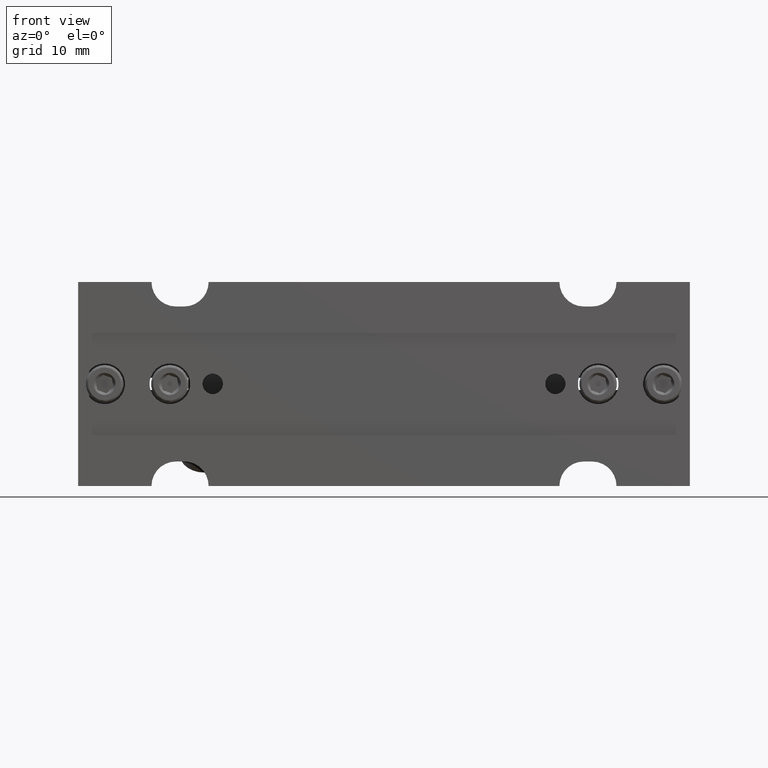
[diagram: clean part render]
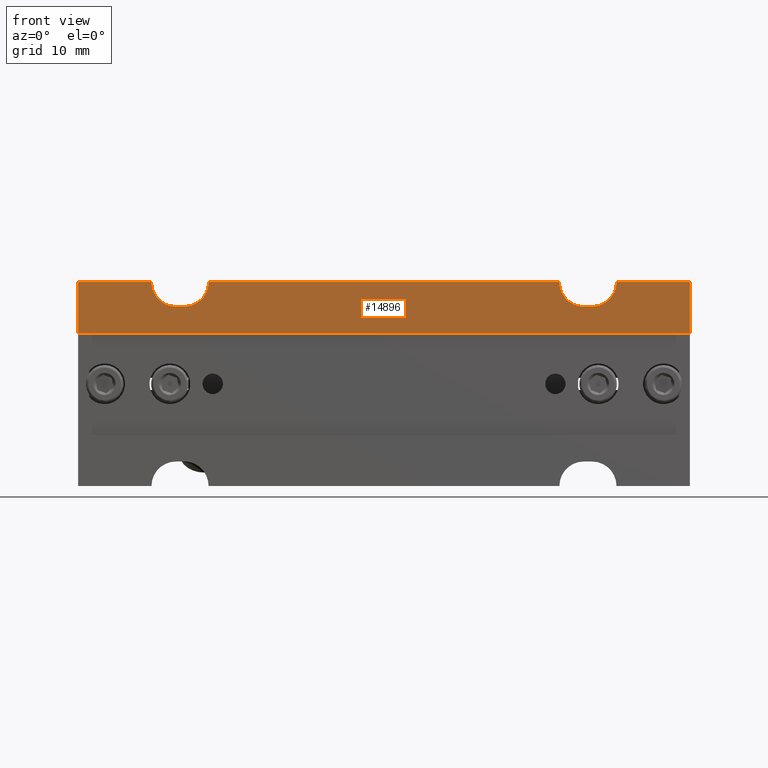
[diagram: same view with one face highlighted and labeled with its STEP entity id]
A machine part, front view. The second image highlights one B-rep face of the part: STEP entity #14896.
In plain terms, the highlighted planar face has unit normal (0, 1, 0).
Its self-contained STEP definition (entity closure, byte-faithful):
#448 = VECTOR ( 'NONE', #17083, 1000.000000000000000 ) ;
#546 = VERTEX_POINT ( 'NONE', #3862 ) ;
#966 = CARTESIAN_POINT ( 'NONE',  ( -8.673654033717513201, 28.17343476192750629, 78.43264947075056170 ) ) ;
#1631 = DIRECTION ( 'NONE',  ( -0.000000000000000000, -1.000000000000000000, -0.000000000000000000 ) ) ;
#1934 = ORIENTED_EDGE ( 'NONE', *, *, #11852, .T. ) ;
#2108 = ORIENTED_EDGE ( 'NONE', *, *, #17259, .T. ) ;
#2662 = CARTESIAN_POINT ( 'NONE',  ( 45.32634596628248858, 28.17343476192750629, 75.43264947075054749 ) ) ;
#2669 = LINE ( 'NONE', #16580, #11147 ) ;
#2742 = EDGE_CURVE ( 'NONE', #14453, #14023, #2669, .T. ) ;
#2766 = AXIS2_PLACEMENT_3D ( 'NONE', #17622, #13119, #6598 ) ;
#3073 = VECTOR ( 'NONE', #3362, 1000.000000000000000 ) ;
#3146 = LINE ( 'NONE', #7855, #8940 ) ;
#3288 = DIRECTION ( 'NONE',  ( 0.000000000000000000, 0.000000000000000000, 1.000000000000000000 ) ) ;
#3362 = DIRECTION ( 'NONE',  ( -1.000000000000000000, 0.000000000000000000, 1.734723475976817547E-15 ) ) ;
#3589 = CARTESIAN_POINT ( 'NONE',  ( -4.673654033717514089, 28.17343476192750629, 75.43264947075054749 ) ) ;
#3862 = CARTESIAN_POINT ( 'NONE',  ( 57.32634596628248858, 28.17343476192750629, 72.18264947075056170 ) ) ;
#3950 = DIRECTION ( 'NONE',  ( 1.000000000000000000, 0.000000000000000000, -0.000000000000000000 ) ) ;
#4054 = VERTEX_POINT ( 'NONE', #5646 ) ;
#4096 = CARTESIAN_POINT ( 'NONE',  ( 57.32634596628248858, 28.17343476192750629, 78.43264947075056170 ) ) ;
#4311 = ORIENTED_EDGE ( 'NONE', *, *, #16951, .F. ) ;
#4457 = VERTEX_POINT ( 'NONE', #6208 ) ;
#4827 = DIRECTION ( 'NONE',  ( -0.000000000000000000, -1.000000000000000000, -0.000000000000000000 ) ) ;
#4867 = EDGE_CURVE ( 'NONE', #4457, #8575, #13503, .T. ) ;
#4902 = ORIENTED_EDGE ( 'NONE', *, *, #10974, .F. ) ;
#5095 = DIRECTION ( 'NONE',  ( -2.775557561562891351E-16, 0.000000000000000000, 1.000000000000000000 ) ) ;
#5646 = CARTESIAN_POINT ( 'NONE',  ( 44.32634596628248858, 28.17343476192750629, 75.43264947075054749 ) ) ;
#6020 = ORIENTED_EDGE ( 'NONE', *, *, #14266, .T. ) ;
#6057 = DIRECTION ( 'NONE',  ( 0.000000000000000000, -0.000000000000000000, 1.000000000000000000 ) ) ;
#6155 = CARTESIAN_POINT ( 'NONE',  ( 19.82634596628248858, 28.17343476192750629, 78.43264947075056170 ) ) ;
#6208 = CARTESIAN_POINT ( 'NONE',  ( 48.32634596628248858, 28.17343476192750629, 78.43264947075056170 ) ) ;
#6292 = EDGE_CURVE ( 'NONE', #546, #8575, #17648, .T. ) ;
#6598 = DIRECTION ( 'NONE',  ( 0.000000000000000000, 0.000000000000000000, 1.000000000000000000 ) ) ;
#6783 = AXIS2_PLACEMENT_3D ( 'NONE', #15665, #14222, #6057 ) ;
#7279 = DIRECTION ( 'NONE',  ( 1.000000000000000000, 0.000000000000000000, -0.000000000000000000 ) ) ;
#7320 = VERTEX_POINT ( 'NONE', #8285 ) ;
#7855 = CARTESIAN_POINT ( 'NONE',  ( 45.32634596628248858, 28.17343476192750629, 75.43264947075054749 ) ) ;
#7999 = CARTESIAN_POINT ( 'NONE',  ( 44.32634596628248858, 28.17343476192750629, 78.43264947075056170 ) ) ;
#8000 = PLANE ( 'NONE',  #6783 ) ;
#8025 = CARTESIAN_POINT ( 'NONE',  ( -1.673654033717508094, 28.17343476192750629, 78.43264947075056170 ) ) ;
#8027 = VERTEX_POINT ( 'NONE', #966 ) ;
#8285 = CARTESIAN_POINT ( 'NONE',  ( -5.673654033717513201, 28.17343476192750629, 75.43264947075054749 ) ) ;
#8416 = VECTOR ( 'NONE', #19209, 1000.000000000000000 ) ;
#8575 = VERTEX_POINT ( 'NONE', #4096 ) ;
#8940 = VECTOR ( 'NONE', #18893, 1000.000000000000000 ) ;
#8979 = CIRCLE ( 'NONE', #2766, 3.000000000000002665 ) ;
#9076 = DIRECTION ( 'NONE',  ( -0.000000000000000000, -1.000000000000000000, -0.000000000000000000 ) ) ;
#9189 = CARTESIAN_POINT ( 'NONE',  ( 45.32634596628248858, 28.17343476192750629, 78.43264947075056170 ) ) ;
#9319 = FACE_OUTER_BOUND ( 'NONE', #13008, .T. ) ;
#9799 = DIRECTION ( 'NONE',  ( 0.000000000000000000, 0.000000000000000000, 1.000000000000000000 ) ) ;
#9871 = LINE ( 'NONE', #13328, #12957 ) ;
#9923 = AXIS2_PLACEMENT_3D ( 'NONE', #7999, #4827, #3288 ) ;
#10475 = VERTEX_POINT ( 'NONE', #13812 ) ;
#10577 = LINE ( 'NONE', #17955, #17772 ) ;
#10974 = EDGE_CURVE ( 'NONE', #8027, #7320, #16100, .T. ) ;
#11147 = VECTOR ( 'NONE', #7279, 1000.000000000000000 ) ;
#11379 = VERTEX_POINT ( 'NONE', #3589 ) ;
#11481 = ORIENTED_EDGE ( 'NONE', *, *, #6292, .T. ) ;
#11609 = ORIENTED_EDGE ( 'NONE', *, *, #15140, .F. ) ;
#11852 = EDGE_CURVE ( 'NONE', #15916, #4054, #3146, .T. ) ;
#12183 = AXIS2_PLACEMENT_3D ( 'NONE', #14910, #9076, #16544 ) ;
#12957 = VECTOR ( 'NONE', #16109, 1000.000000000000000 ) ;
#13008 = EDGE_LOOP ( 'NONE', ( #6020, #11481, #14556, #11609, #1934, #4311, #13199, #18320, #2108, #4902, #16189, #16659 ) ) ;
#13119 = DIRECTION ( 'NONE',  ( -0.000000000000000000, -1.000000000000000000, -0.000000000000000000 ) ) ;
#13199 = ORIENTED_EDGE ( 'NONE', *, *, #2742, .F. ) ;
#13328 = CARTESIAN_POINT ( 'NONE',  ( -21.44216856881706335, 28.17343476192750629, 72.18264947075056170 ) ) ;
#13503 = LINE ( 'NONE', #6155, #448 ) ;
#13812 = CARTESIAN_POINT ( 'NONE',  ( -17.67365403371751498, 28.17343476192750629, 78.43264947075056170 ) ) ;
#14023 = VERTEX_POINT ( 'NONE', #16640 ) ;
#14167 = CIRCLE ( 'NONE', #9923, 3.000000000000002665 ) ;
#14222 = DIRECTION ( 'NONE',  ( 0.000000000000000000, 1.000000000000000000, 0.000000000000000000 ) ) ;
#14266 = EDGE_CURVE ( 'NONE', #14357, #546, #9871, .T. ) ;
#14357 = VERTEX_POINT ( 'NONE', #16914 ) ;
#14453 = VERTEX_POINT ( 'NONE', #8025 ) ;
#14504 = CARTESIAN_POINT ( 'NONE',  ( -17.67365403371751498, 28.17343476192750629, 53.43264947075055460 ) ) ;
#14556 = ORIENTED_EDGE ( 'NONE', *, *, #4867, .F. ) ;
#14896 = ADVANCED_FACE ( 'NONE', ( #9319 ), #8000, .F. ) ;
#14910 = CARTESIAN_POINT ( 'NONE',  ( -5.673654033717511425, 28.17343476192750629, 78.43264947075056170 ) ) ;
#15140 = EDGE_CURVE ( 'NONE', #15916, #4457, #17536, .T. ) ;
#15200 = EDGE_CURVE ( 'NONE', #10475, #14357, #17468, .T. ) ;
#15427 = CARTESIAN_POINT ( 'NONE',  ( -5.673654033717507872, 28.17343476192750629, 75.43264947075054749 ) ) ;
#15665 = CARTESIAN_POINT ( 'NONE',  ( 19.82634596628248858, 28.17343476192750629, 65.93264947075056170 ) ) ;
#15907 = AXIS2_PLACEMENT_3D ( 'NONE', #9189, #1631, #9799 ) ;
#15916 = VERTEX_POINT ( 'NONE', #2662 ) ;
#16016 = VECTOR ( 'NONE', #5095, 1000.000000000000000 ) ;
#16100 = CIRCLE ( 'NONE', #12183, 3.000000000000002665 ) ;
#16109 = DIRECTION ( 'NONE',  ( 1.000000000000000000, 0.000000000000000000, -0.000000000000000000 ) ) ;
#16189 = ORIENTED_EDGE ( 'NONE', *, *, #18393, .F. ) ;
#16544 = DIRECTION ( 'NONE',  ( 0.000000000000000000, 0.000000000000000000, 1.000000000000000000 ) ) ;
#16580 = CARTESIAN_POINT ( 'NONE',  ( 19.82634596628248858, 28.17343476192750629, 78.43264947075056170 ) ) ;
#16640 = CARTESIAN_POINT ( 'NONE',  ( 41.32634596628248858, 28.17343476192750629, 78.43264947075056170 ) ) ;
#16659 = ORIENTED_EDGE ( 'NONE', *, *, #15200, .T. ) ;
#16914 = CARTESIAN_POINT ( 'NONE',  ( -17.67365403371751498, 28.17343476192750629, 72.18264947075056170 ) ) ;
#16951 = EDGE_CURVE ( 'NONE', #14023, #4054, #14167, .T. ) ;
#17083 = DIRECTION ( 'NONE',  ( 1.000000000000000000, 0.000000000000000000, -0.000000000000000000 ) ) ;
#17259 = EDGE_CURVE ( 'NONE', #11379, #7320, #18599, .T. ) ;
#17468 = LINE ( 'NONE', #14504, #8416 ) ;
#17536 = CIRCLE ( 'NONE', #15907, 3.000000000000002665 ) ;
#17622 = CARTESIAN_POINT ( 'NONE',  ( -4.673654033717510536, 28.17343476192750629, 78.43264947075056170 ) ) ;
#17648 = LINE ( 'NONE', #18895, #16016 ) ;
#17772 = VECTOR ( 'NONE', #3950, 1000.000000000000000 ) ;
#17955 = CARTESIAN_POINT ( 'NONE',  ( 19.82634596628248858, 28.17343476192750629, 78.43264947075056170 ) ) ;
#18320 = ORIENTED_EDGE ( 'NONE', *, *, #18719, .F. ) ;
#18393 = EDGE_CURVE ( 'NONE', #10475, #8027, #10577, .T. ) ;
#18599 = LINE ( 'NONE', #15427, #3073 ) ;
#18719 = EDGE_CURVE ( 'NONE', #11379, #14453, #8979, .T. ) ;
#18893 = DIRECTION ( 'NONE',  ( -1.000000000000000000, 0.000000000000000000, -0.000000000000000000 ) ) ;
#18895 = CARTESIAN_POINT ( 'NONE',  ( 57.32634596628249568, 28.17343476192750629, 53.43264947075055460 ) ) ;
#19209 = DIRECTION ( 'NONE',  ( 0.000000000000000000, 0.000000000000000000, -1.000000000000000000 ) ) ;